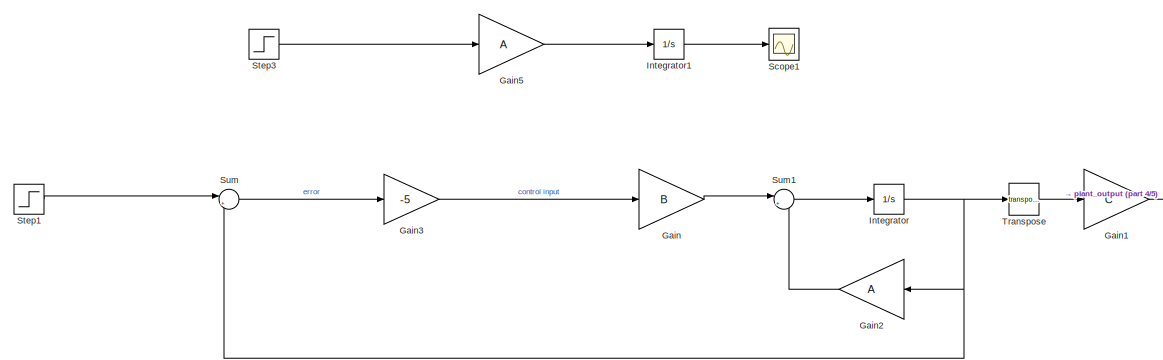
[diagram: root canvas - part 1/5, top center region]
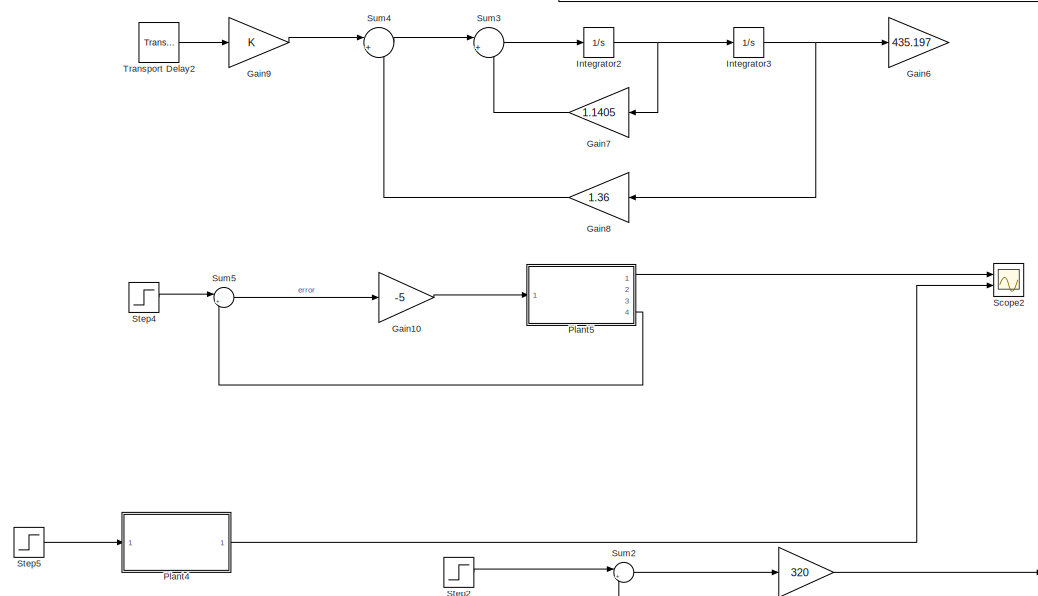
[diagram: root canvas - part 2/5, middle left region]
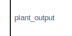
[diagram: root canvas - part 3/5, middle right region]
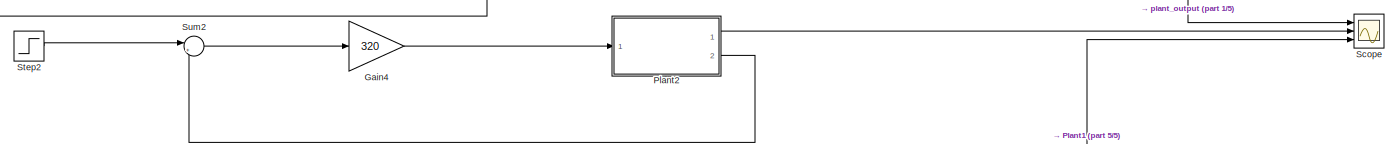
[diagram: root canvas - part 4/5, full width, bottom band]
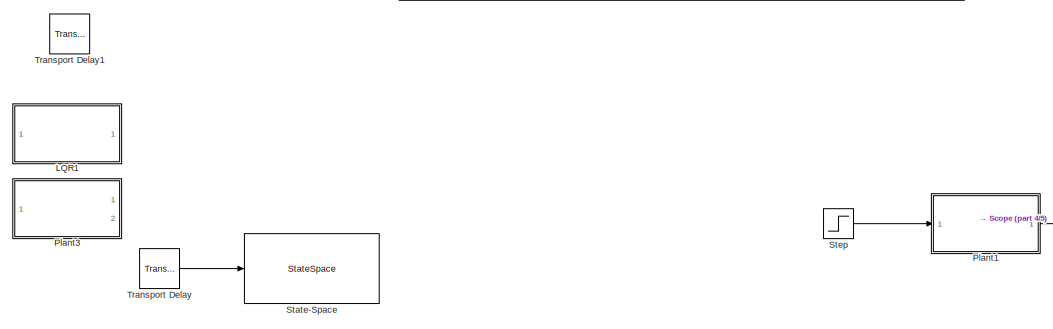
[diagram: root canvas - part 5/5, bottom center region]
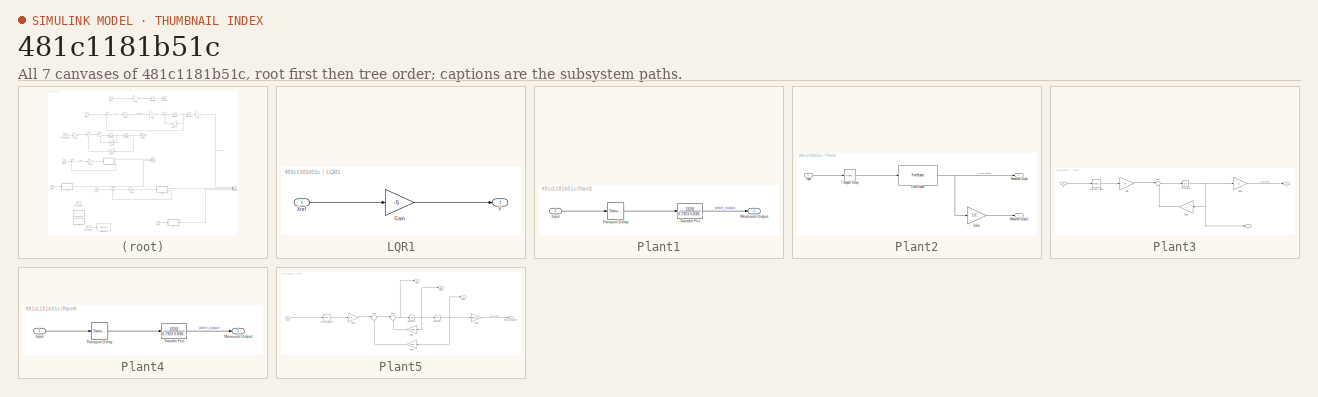
[diagram: thumbnail index - all 7 canvases of the model, root first then tree order]
MODEL slx_481c1181b51c
KIND model
CONFIG AbsTol = auto
CONFIG EnableMultiTasking = off
CONFIG FixedStep = auto
CONFIG MaxStep = auto
CONFIG MinStep = auto
CONFIG RelTol = 1e-3
CONFIG SampleTimeConstraint = Unconstrained
CONFIG Solver = VariableStepAuto
CONFIG SolverName = VariableStepAuto
CONFIG StartTime = 0.0
CONFIG StopTime = 15
BLOCK [Gain] Gain
  Commented = on
  Gain = B
  Multiplication = Matrix(u*K)
  OutDataTypeStr = Inherit: Inherit via internal rule
  ParamDataTypeStr = Inherit: Inherit via internal rule
  SaturateOnIntegerOverflow = off
BLOCK [Gain] Gain1
  Commented = on
  Gain = C
  Multiplication = Matrix(u*K)
  OutDataTypeStr = Inherit: Inherit via internal rule
  ParamDataTypeStr = Inherit: Inherit via internal rule
  SaturateOnIntegerOverflow = off
BLOCK [Gain] Gain10
  Gain = -5
  OutDataTypeStr = Inherit: Inherit via internal rule
  ParamDataTypeStr = Inherit: Inherit via internal rule
  SaturateOnIntegerOverflow = off
BLOCK [Gain] Gain2
  Commented = on
  Gain = A
  Multiplication = Matrix(u*K)
  OutDataTypeStr = Inherit: Inherit via internal rule
  ParamDataTypeStr = Inherit: Inherit via internal rule
  SaturateOnIntegerOverflow = off
BLOCK [Gain] Gain3
  Commented = on
  Gain = -5
  OutDataTypeStr = Inherit: Inherit via internal rule
  ParamDataTypeStr = Inherit: Inherit via internal rule
  SaturateOnIntegerOverflow = off
BLOCK [Gain] Gain4
  Commented = on
  Gain = 320
  OutDataTypeStr = Inherit: Inherit via internal rule
  ParamDataTypeStr = Inherit: Inherit via internal rule
  SaturateOnIntegerOverflow = off
BLOCK [Gain] Gain5
  Gain = A
  OutDataTypeStr = Inherit: Inherit via internal rule
  ParamDataTypeStr = Inherit: Inherit via internal rule
  SaturateOnIntegerOverflow = off
BLOCK [Gain] Gain6
  Commented = on
  Gain = 435.197
  OutDataTypeStr = Inherit: Inherit via internal rule
  ParamDataTypeStr = Inherit: Inherit via internal rule
  SaturateOnIntegerOverflow = off
BLOCK [Gain] Gain7
  Commented = on
  Gain = 1.1405
  OutDataTypeStr = Inherit: Inherit via internal rule
  ParamDataTypeStr = Inherit: Inherit via internal rule
  SaturateOnIntegerOverflow = off
BLOCK [Gain] Gain8
  Commented = on
  Gain = 1.36
  OutDataTypeStr = Inherit: Inherit via internal rule
  ParamDataTypeStr = Inherit: Inherit via internal rule
  SaturateOnIntegerOverflow = off
BLOCK [Gain] Gain9
  Commented = on
  OutDataTypeStr = Inherit: Inherit via internal rule
  ParamDataTypeStr = Inherit: Inherit via internal rule
  SaturateOnIntegerOverflow = off
BLOCK [Integrator] Integrator
  Commented = on
  Ports = [1, 1]
BLOCK [Integrator] Integrator1
  Ports = [1, 1]
BLOCK [Integrator] Integrator2
  Commented = on
  Ports = [1, 1]
BLOCK [Integrator] Integrator3
  Commented = on
  Ports = [1, 1]
BLOCK [SubSystem] LQR1
  Commented = on
  Ports = [1, 1]
  RequestExecContextInheritance = off
  Variant = off
BLOCK [Gain] LQR1/Gain
  Gain = -5
  OutDataTypeStr = Inherit: Inherit via internal rule
  ParamDataTypeStr = Inherit: Inherit via internal rule
  SaturateOnIntegerOverflow = off
BLOCK [Inport] LQR1/Xref
  IconDisplay = Port number
BLOCK [Outport] LQR1/Y
  IconDisplay = Port number
BLOCK [SubSystem] Plant1
  Commented = on
  Ports = [1, 1]
  RequestExecContextInheritance = off
  Variant = off
BLOCK [Inport] Plant1/Input
  IconDisplay = Port number
BLOCK [Outport] Plant1/Measured Output
  IconDisplay = Port number
BLOCK [TransferFcn] Plant1/Transfer Fcn
  Denominator = [0.7353 0.8386 1]
  Numerator = [320]
BLOCK [TransportDelay] Plant1/Transport Delay
  DelayTime = 0.3
  Ports = [1, 1]
BLOCK [SubSystem] Plant2
  Commented = on
  Ports = [1, 2]
  RequestExecContextInheritance = off
  Variant = off
BLOCK [Gain] Plant2/Gain1
  Gain = 1/C
  Multiplication = Matrix(u*K)
  OutDataTypeStr = Inherit: Inherit via internal rule
  ParamDataTypeStr = Inherit: Inherit via internal rule
  SaturateOnIntegerOverflow = off
BLOCK [Inport] Plant2/Input
  IconDisplay = Port number
BLOCK [Outport] Plant2/Measured Output
  IconDisplay = Port number
BLOCK [Outport] Plant2/Measured Output1
  IconDisplay = Port number
  Port = 2
BLOCK [StateSpace] Plant2/State-Space
  A = A
  B = B
  C = C
  D = 0
  Ports = [1, 1]
  X0 = 0
BLOCK [TransportDelay] Plant2/Transport Delay
  DelayTime = 0.3
  Ports = [1, 1]
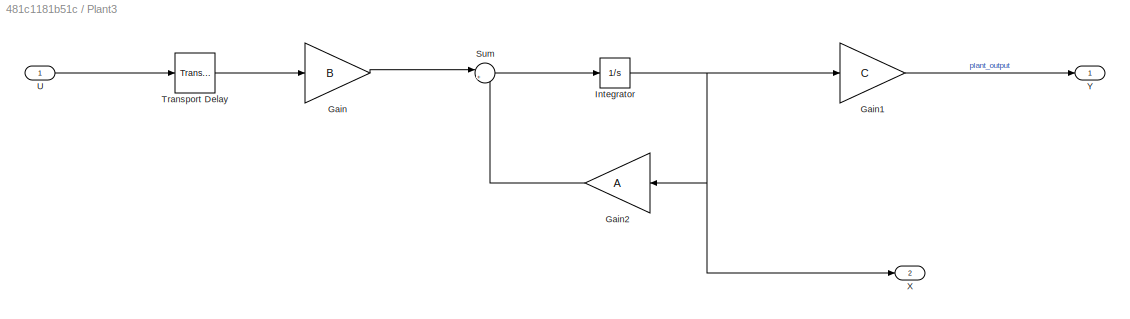
BLOCK [SubSystem] Plant3
  Commented = on
  Ports = [1, 2]
  RequestExecContextInheritance = off
  Variant = off
BLOCK [Gain] Plant3/Gain
  Gain = B
  OutDataTypeStr = Inherit: Inherit via internal rule
  ParamDataTypeStr = Inherit: Inherit via internal rule
  SaturateOnIntegerOverflow = off
BLOCK [Gain] Plant3/Gain1
  Gain = C
  OutDataTypeStr = Inherit: Inherit via internal rule
  ParamDataTypeStr = Inherit: Inherit via internal rule
  SaturateOnIntegerOverflow = off
BLOCK [Gain] Plant3/Gain2
  Gain = A
  OutDataTypeStr = Inherit: Inherit via internal rule
  ParamDataTypeStr = Inherit: Inherit via internal rule
  SaturateOnIntegerOverflow = off
BLOCK [Integrator] Plant3/Integrator
  Ports = [1, 1]
BLOCK [Sum] Plant3/Sum
  IconShape = round
  InputSameDT = off
  Inputs = |+-
  OutDataTypeStr = Inherit: Inherit via internal rule
  Ports = [2, 1]
  SaturateOnIntegerOverflow = off
BLOCK [TransportDelay] Plant3/Transport Delay
  DelayTime = 0.3
  Ports = [1, 1]
BLOCK [Inport] Plant3/U
  IconDisplay = Port number
BLOCK [Outport] Plant3/X
  IconDisplay = Port number
  Port = 2
BLOCK [Outport] Plant3/Y
  IconDisplay = Port number
BLOCK [SubSystem] Plant4
  Ports = [1, 1]
  RequestExecContextInheritance = off
  Variant = off
BLOCK [Inport] Plant4/Input
  IconDisplay = Port number
BLOCK [Outport] Plant4/Measured Output
  IconDisplay = Port number
BLOCK [TransferFcn] Plant4/Transfer Fcn
  Denominator = [0.7353 0.8386 1]
  Numerator = [320]
BLOCK [TransportDelay] Plant4/Transport Delay
  DelayTime = 0.3
  Ports = [1, 1]
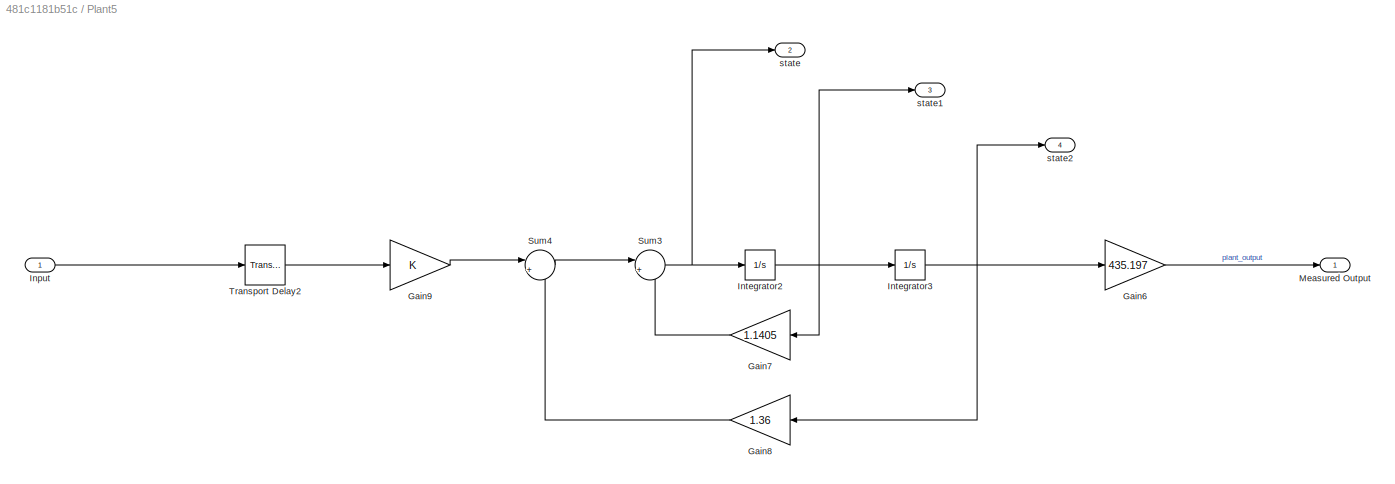
BLOCK [SubSystem] Plant5
  Ports = [1, 4]
  RequestExecContextInheritance = off
  Variant = off
BLOCK [Gain] Plant5/Gain6
  Gain = 435.197
  OutDataTypeStr = Inherit: Inherit via internal rule
  ParamDataTypeStr = Inherit: Inherit via internal rule
  SaturateOnIntegerOverflow = off
BLOCK [Gain] Plant5/Gain7
  Gain = 1.1405
  OutDataTypeStr = Inherit: Inherit via internal rule
  ParamDataTypeStr = Inherit: Inherit via internal rule
  SaturateOnIntegerOverflow = off
BLOCK [Gain] Plant5/Gain8
  Gain = 1.36
  OutDataTypeStr = Inherit: Inherit via internal rule
  ParamDataTypeStr = Inherit: Inherit via internal rule
  SaturateOnIntegerOverflow = off
BLOCK [Gain] Plant5/Gain9
  OutDataTypeStr = Inherit: Inherit via internal rule
  ParamDataTypeStr = Inherit: Inherit via internal rule
  SaturateOnIntegerOverflow = off
BLOCK [Inport] Plant5/Input
  IconDisplay = Port number
BLOCK [Integrator] Plant5/Integrator2
  Ports = [1, 1]
BLOCK [Integrator] Plant5/Integrator3
  Ports = [1, 1]
BLOCK [Outport] Plant5/Measured Output
  IconDisplay = Port number
BLOCK [Sum] Plant5/Sum3
  IconShape = round
  InputSameDT = off
  Inputs = |+-
  OutDataTypeStr = Inherit: Inherit via internal rule
  Ports = [2, 1]
  SaturateOnIntegerOverflow = off
BLOCK [Sum] Plant5/Sum4
  IconShape = round
  InputSameDT = off
  Inputs = |+-
  OutDataTypeStr = Inherit: Inherit via internal rule
  Ports = [2, 1]
  SaturateOnIntegerOverflow = off
BLOCK [TransportDelay] Plant5/Transport Delay2
  DelayTime = 0.3
  Ports = [1, 1]
BLOCK [Outport] Plant5/state
  IconDisplay = Port number
  Port = 2
BLOCK [Outport] Plant5/state1
  IconDisplay = Port number
  Port = 3
BLOCK [Outport] Plant5/state2
  IconDisplay = Port number
  Port = 4
BLOCK [Scope] Scope
  NumInputPorts = 3
  Ports = [3]
  ScopeSpecificationString = Simulink.scopes.TimeScopeBlockCfg('CurrentConfiguration', extmgr.ConfigurationSet(extmgr.Configuration('Core','General UI',true),extmgr.Configuration('Core','Source UI',true),extmgr.Configuration('Sources','WiredSimulink',true),extmgr.Configuration('Visuals','Time Domain',true,'SerializedDisplays',{struct('MinYLimReal','-46.83481','MaxYLimReal','421.51333','YLabelReal','','MinYLimMag','0.00000','M...<+1392ch>
BLOCK [Scope] Scope1
  NumInputPorts = 1
  Ports = [1]
  ScopeSpecificationString = Simulink.scopes.TimeScopeBlockCfg('CurrentConfiguration', extmgr.ConfigurationSet(extmgr.Configuration('Core','General UI',true),extmgr.Configuration('Core','Source UI',true),extmgr.Configuration('Sources','WiredSimulink',true,'DataLoggingVariableName','ScopeData1'),extmgr.Configuration('Visuals','Time Domain',true,'SerializedDisplays',{struct('MinYLimReal','-23.17062','MaxYLimReal','18.13007','YL...<+1426ch>
BLOCK [Scope] Scope2
  NumInputPorts = 2
  Ports = [2]
  ScopeSpecificationString = Simulink.scopes.TimeScopeBlockCfg('CurrentConfiguration', extmgr.ConfigurationSet(extmgr.Configuration('Core','General UI',true),extmgr.Configuration('Core','Source UI',true),extmgr.Configuration('Sources','WiredSimulink',true,'DataLoggingVariableName','ScopeData2'),extmgr.Configuration('Visuals','Time Domain',true,'SerializedDisplays',{struct('MinYLimReal','-46.84502','MaxYLimReal','421.60519','Y...<+1424ch>
BLOCK [StateSpace] State-Space
  A = A
  B = B
  C = C
  Commented = on
  D = 0
  Ports = [1, 1]
  X0 = 0
BLOCK [Step] Step
  Commented = on
  SampleTime = 0
BLOCK [Step] Step1
  Commented = on
  SampleTime = 0
BLOCK [Step] Step2
  Commented = on
  SampleTime = 0
BLOCK [Step] Step3
  SampleTime = 0
BLOCK [Step] Step4
  SampleTime = 0
BLOCK [Step] Step5
  SampleTime = 0
BLOCK [Sum] Sum
  Commented = on
  IconShape = round
  InputSameDT = off
  Inputs = |+-
  OutDataTypeStr = Inherit: Inherit via internal rule
  Ports = [2, 1]
  SaturateOnIntegerOverflow = off
BLOCK [Sum] Sum1
  Commented = on
  IconShape = round
  InputSameDT = off
  Inputs = |+-
  OutDataTypeStr = Inherit: Inherit via internal rule
  Ports = [2, 1]
  SaturateOnIntegerOverflow = off
BLOCK [Sum] Sum2
  Commented = on
  IconShape = round
  InputSameDT = off
  Inputs = |+-
  OutDataTypeStr = Inherit: Inherit via internal rule
  Ports = [2, 1]
  SaturateOnIntegerOverflow = off
BLOCK [Sum] Sum3
  Commented = on
  IconShape = round
  InputSameDT = off
  Inputs = |+-
  OutDataTypeStr = Inherit: Inherit via internal rule
  Ports = [2, 1]
  SaturateOnIntegerOverflow = off
BLOCK [Sum] Sum4
  Commented = on
  IconShape = round
  InputSameDT = off
  Inputs = |+-
  OutDataTypeStr = Inherit: Inherit via internal rule
  Ports = [2, 1]
  SaturateOnIntegerOverflow = off
BLOCK [Sum] Sum5
  IconShape = round
  InputSameDT = off
  Inputs = |+-
  OutDataTypeStr = Inherit: Inherit via internal rule
  Ports = [2, 1]
  SaturateOnIntegerOverflow = off
BLOCK [TransportDelay] Transport Delay
  Commented = on
  DelayTime = 0.3
  Ports = [1, 1]
BLOCK [TransportDelay] Transport Delay1
  Commented = on
  DelayTime = 0.3
  Ports = [1, 1]
BLOCK [TransportDelay] Transport Delay2
  Commented = on
  DelayTime = 0.3
  Ports = [1, 1]
BLOCK [Math] Transpose
  Commented = on
  Operator = transpose
  Ports = [1, 1]
LINE Gain10:1 -> Plant5:1
LINE Gain1:1 -> Scope:1
LINE Gain2:1 -> Sum1:2
LINE Gain3:1 -> Gain:1
LINE Gain4:1 -> Plant2:1
LINE Gain5:1 -> Integrator1:1
LINE Gain7:1 -> Sum3:2
LINE Gain8:1 -> Sum4:2
LINE Gain9:1 -> Sum4:1
LINE Gain:1 -> Sum1:1
LINE Integrator1:1 -> Scope1:1
NET Integrator2:1 -> Gain7:1, Integrator3:1
NET Integrator3:1 -> Gain6:1, Gain8:1
NET Integrator:1 -> Gain2:1, Sum:2, Transpose:1
LINE LQR1/Gain:1 -> LQR1/Y:1
LINE LQR1/Xref:1 -> LQR1/Gain:1
LINE Plant1/Input:1 -> Plant1/Transport Delay:1
LINE Plant1/Transfer Fcn:1 -> Plant1/Measured Output:1
LINE Plant1/Transport Delay:1 -> Plant1/Transfer Fcn:1
LINE Plant1:1 -> Scope:3
LINE Plant2/Gain1:1 -> Plant2/Measured Output1:1
LINE Plant2/Input:1 -> Plant2/Transport Delay:1
NET Plant2/State-Space:1 -> Plant2/Gain1:1, Plant2/Measured Output:1
LINE Plant2/Transport Delay:1 -> Plant2/State-Space:1
LINE Plant2:1 -> Scope:2
LINE Plant2:2 -> Sum2:2
LINE Plant3/Gain1:1 -> Plant3/Y:1
LINE Plant3/Gain2:1 -> Plant3/Sum:2
LINE Plant3/Gain:1 -> Plant3/Sum:1
NET Plant3/Integrator:1 -> Plant3/Gain1:1, Plant3/Gain2:1, Plant3/X:1
LINE Plant3/Sum:1 -> Plant3/Integrator:1
LINE Plant3/Transport Delay:1 -> Plant3/Gain:1
LINE Plant3/U:1 -> Plant3/Transport Delay:1
LINE Plant4/Input:1 -> Plant4/Transport Delay:1
LINE Plant4/Transfer Fcn:1 -> Plant4/Measured Output:1
LINE Plant4/Transport Delay:1 -> Plant4/Transfer Fcn:1
LINE Plant4:1 -> Scope2:2
LINE Plant5/Gain6:1 -> Plant5/Measured Output:1
LINE Plant5/Gain7:1 -> Plant5/Sum3:2
LINE Plant5/Gain8:1 -> Plant5/Sum4:2
LINE Plant5/Gain9:1 -> Plant5/Sum4:1
LINE Plant5/Input:1 -> Plant5/Transport Delay2:1
NET Plant5/Integrator2:1 -> Plant5/Gain7:1, Plant5/Integrator3:1, Plant5/state1:1
NET Plant5/Integrator3:1 -> Plant5/Gain6:1, Plant5/Gain8:1, Plant5/state2:1
NET Plant5/Sum3:1 -> Plant5/Integrator2:1, Plant5/state:1
LINE Plant5/Sum4:1 -> Plant5/Sum3:1
LINE Plant5/Transport Delay2:1 -> Plant5/Gain9:1
LINE Plant5:1 -> Scope2:1
LINE Plant5:4 -> Sum5:2
LINE Step1:1 -> Sum:1
LINE Step2:1 -> Sum2:1
LINE Step3:1 -> Gain5:1
LINE Step4:1 -> Sum5:1
LINE Step5:1 -> Plant4:1
LINE Step:1 -> Plant1:1
LINE Sum1:1 -> Integrator:1
LINE Sum2:1 -> Gain4:1
LINE Sum3:1 -> Integrator2:1
LINE Sum4:1 -> Sum3:1
LINE Sum5:1 -> Gain10:1
LINE Sum:1 -> Gain3:1
LINE Transport Delay2:1 -> Gain9:1
LINE Transport Delay:1 -> State-Space:1
LINE Transpose:1 -> Gain1:1
note: NET lines group one-source signal fan-out (src -> all destinations, sorted); 1:1 wires keep LINE
